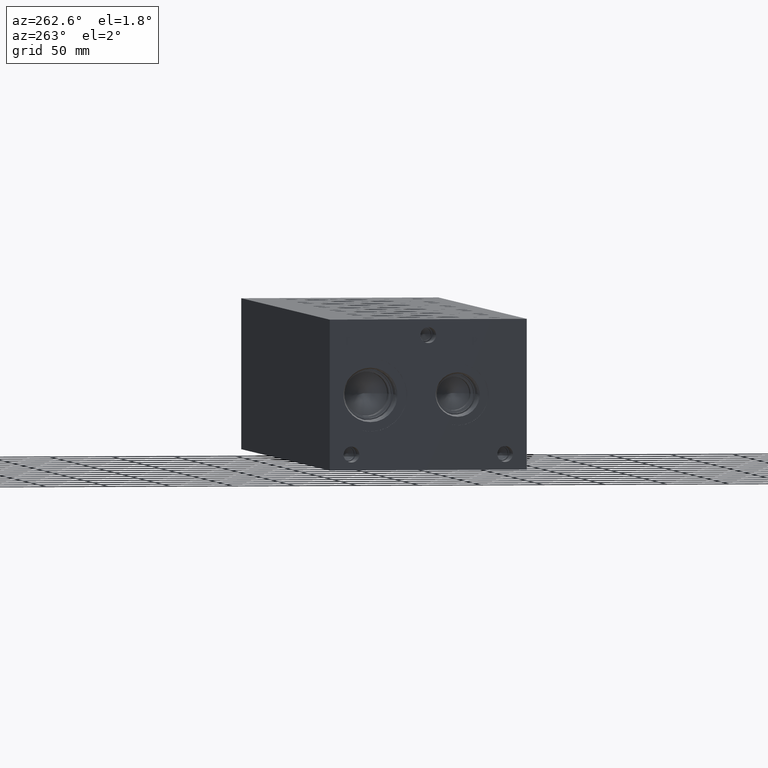
[diagram: clean part render]
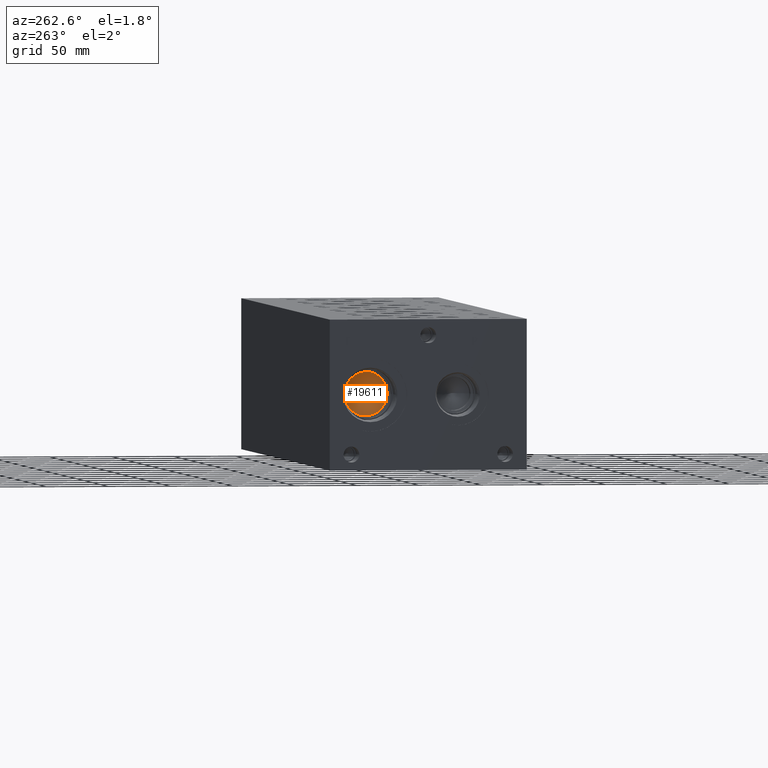
[diagram: same view with one face highlighted and labeled with its STEP entity id]
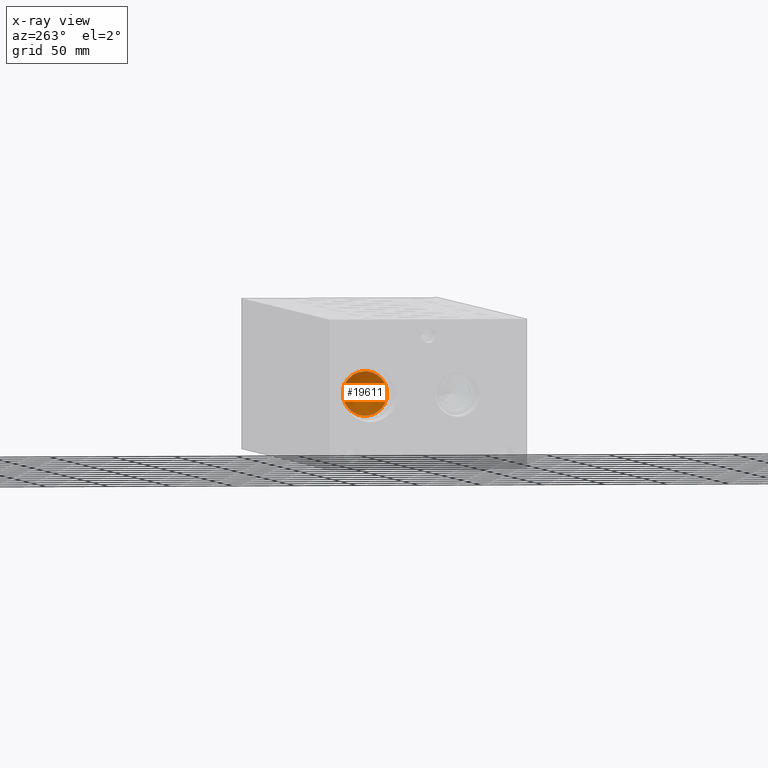
[diagram: x-ray of the same camera — body ghosted, the highlighted face saturated]
A machine part, auxiliary view. The second image highlights one B-rep face of the part: STEP entity #19611.
The next image is the same camera in x-ray: the body ghosted, the highlighted face saturated — about 0% of this face is hidden behind the body in this view.
In plain terms, the highlighted conical surface has half-angle 60 deg.
Its self-contained STEP definition (entity closure, byte-faithful):
#276=CONICAL_SURFACE('',#20859,8.9281,1.0471975511966);
#914=CIRCLE('',#20860,17.8562);
#915=CIRCLE('',#20861,17.8562);
#2668=FACE_OUTER_BOUND('',#3843,.T.);
#3843=EDGE_LOOP('',(#16426,#16427,#16428,#16429));
#5638=LINE('',#33154,#7304);
#7304=VECTOR('',#24920,8.9281);
#9024=VERTEX_POINT('',#33150);
#9025=VERTEX_POINT('',#33151);
#9026=VERTEX_POINT('',#33153);
#11615=EDGE_CURVE('',#9024,#9025,#914,.T.);
#11616=EDGE_CURVE('',#9025,#9026,#5638,.T.);
#11617=EDGE_CURVE('',#9025,#9024,#915,.T.);
#16426=ORIENTED_EDGE('',*,*,#11615,.T.);
#16427=ORIENTED_EDGE('',*,*,#11616,.T.);
#16428=ORIENTED_EDGE('',*,*,#11616,.F.);
#16429=ORIENTED_EDGE('',*,*,#11617,.T.);
#19611=ADVANCED_FACE('',(#2668),#276,.F.);
#20859=AXIS2_PLACEMENT_3D('',#33149,#24916,#24917);
#20860=AXIS2_PLACEMENT_3D('',#33152,#24918,#24919);
#20861=AXIS2_PLACEMENT_3D('',#33155,#24921,#24922);
#24916=DIRECTION('center_axis',(-1.,0.,0.));
#24917=DIRECTION('ref_axis',(0.,1.,0.));
#24918=DIRECTION('center_axis',(-1.,0.,0.));
#24919=DIRECTION('ref_axis',(0.,1.,0.));
#24920=DIRECTION('',(0.5,0.866025403784439,-1.06057523872491E-16));
#24921=DIRECTION('center_axis',(-1.,0.,0.));
#24922=DIRECTION('ref_axis',(0.,1.,0.));
#33149=CARTESIAN_POINT('Origin',(40.0440309383519,125.8316,60.325));
#33150=CARTESIAN_POINT('',(34.88939,143.6878,60.325));
#33151=CARTESIAN_POINT('',(34.88939,107.9754,60.325));
#33152=CARTESIAN_POINT('Origin',(34.88939,125.8316,60.325));
#33153=CARTESIAN_POINT('',(45.1986718767038,125.8316,60.325));
#33154=CARTESIAN_POINT('',(40.0440309383519,116.9035,60.325));
#33155=CARTESIAN_POINT('Origin',(34.88939,125.8316,60.325));